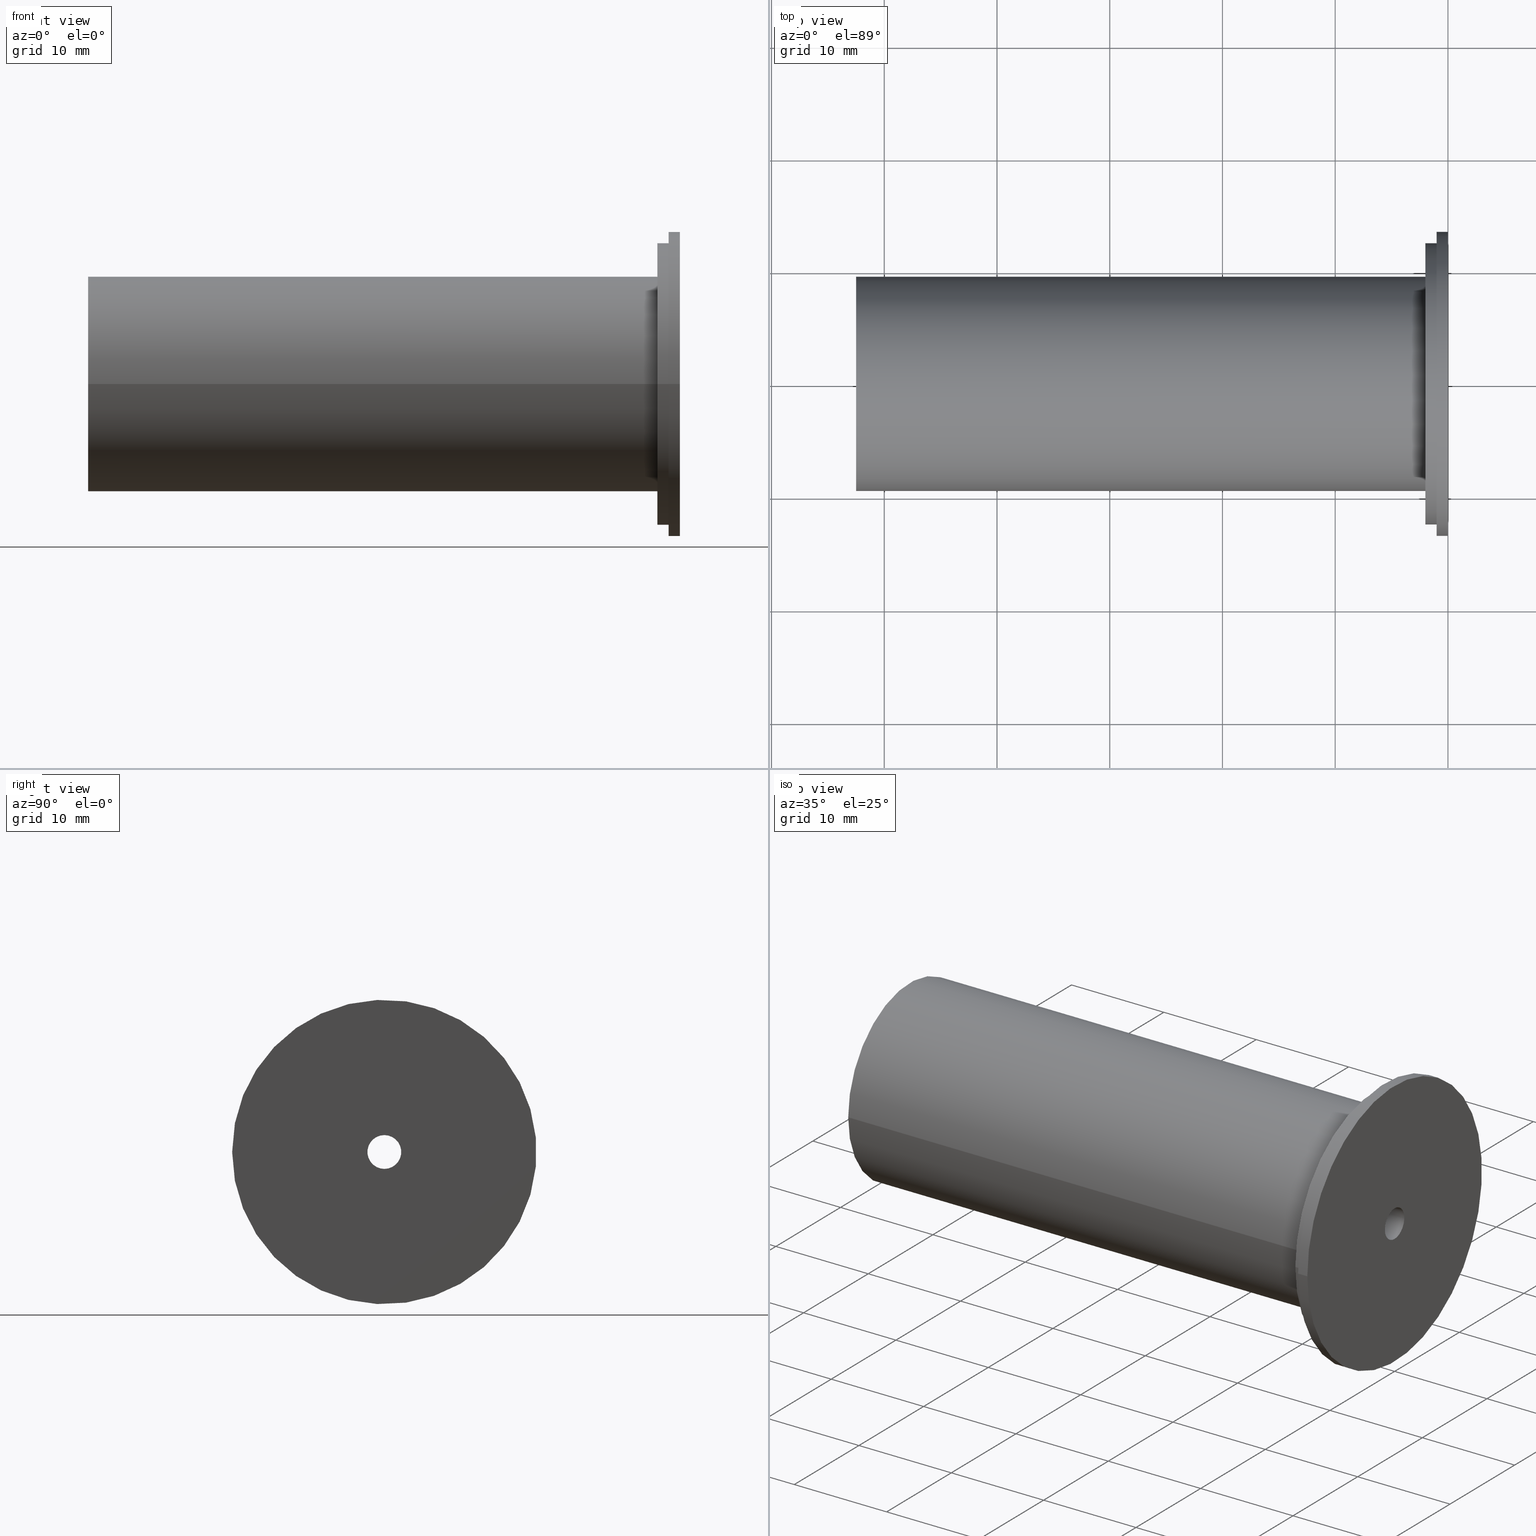
[diagram: canonical four-view strip — front | top / right | iso, engineering-drawing reading convention]
A machine part, canonical four-view strip (front | top / right | iso — engineering-drawing reading convention). The complete STEP part file that produces these views, byte-faithful:
ISO-10303-21;
HEADER;
/* Generated by software containing ST-Developer
 * from STEP Tools, Inc. (www.steptools.com) 
 */

FILE_DESCRIPTION(
/* description */ ('',
'CAx-IF Rec.Pracs.---Representation and Presentation of Product Manufa
cturing Information (PMI)---4.0---2014-10-13'),
/* implementation_level */ '2;1');

FILE_NAME(
/* name */ '102503.stp',
/* time_stamp */ '2025-05-12T15:12:07+09:00',
/* author */ ('eos'),
/* organization */ (''),
/* preprocessor_version */ 'ST-DEVELOPER v20',
/* originating_system */ 'Autodesk Inventor 2025',
/* authorisation */ '');

FILE_SCHEMA (('AP242_MANAGED_MODEL_BASED_3D_ENGINEERING_MIM_LF { 1 0 10303 442 1 1 4 }'));
ENDSEC;

DATA;
#10=CONSTRUCTIVE_GEOMETRY_REPRESENTATION_RELATIONSHIP('CGRR','None',#509,
#11);
#11=CONSTRUCTIVE_GEOMETRY_REPRESENTATION('Supplemental geometry',(#45,#46,
#47,#48),#501);
#12=MECHANICAL_DESIGN_AND_DRAUGHTING_RELATIONSHIP('\X2\B4F1AC01D22CC601\X0\',
'',#27,#28);
#13=MECHANICAL_DESIGN_AND_DRAUGHTING_RELATIONSHIP('\X2\C815BA74\X0\','',
#29,#28);
#14=MECHANICAL_DESIGN_AND_DRAUGHTING_RELATIONSHIP('\X2\D3C9BA74\X0\','',
#30,#28);
#15=MECHANICAL_DESIGN_AND_DRAUGHTING_RELATIONSHIP('\X2\C6B0CE21BA74\X0\',
'',#31,#28);
#16=MAPPED_ITEM('',#21,#309);
#17=MAPPED_ITEM('',#22,#310);
#18=MAPPED_ITEM('',#23,#311);
#19=MAPPED_ITEM('',#24,#312);
#20=MAPPED_ITEM('',#25,#313);
#21=REPRESENTATION_MAP(#309,#26);
#22=REPRESENTATION_MAP(#310,#509);
#23=REPRESENTATION_MAP(#311,#26);
#24=REPRESENTATION_MAP(#312,#26);
#25=REPRESENTATION_MAP(#313,#26);
#26=ADVANCED_BREP_SHAPE_REPRESENTATION('\X2\B4F1AC01D22CC601\X0\',(#85),
#501);
#27=DRAUGHTING_MODEL('\X2\B4F1AC01D22CC601\X0\',(#16,#33),#501);
#28=DRAUGHTING_MODEL('',(#17,#310),#501);
#29=DRAUGHTING_MODEL('\X2\C815BA74\X0\',(#18,#34),#501);
#30=DRAUGHTING_MODEL('\X2\D3C9BA74\X0\',(#19,#35),#501);
#31=DRAUGHTING_MODEL('\X2\C6B0CE21BA74\X0\',(#20,#36),#501);
#32=MECHANICAL_DESIGN_GEOMETRIC_PRESENTATION_REPRESENTATION('',(#59,#60,
#61,#62,#63,#64,#65,#66,#67,#68,#69,#70,#71,#72,#73,#74,#75,#76,#77,#78,
#79,#80,#81,#82,#83),#502);
#33=CAMERA_MODEL_D3('\X2\B4F1AC01D22CC601\X0\',#301,#37);
#34=CAMERA_MODEL_D3('\X2\C815BA74\X0\',#303,#38);
#35=CAMERA_MODEL_D3('\X2\D3C9BA74\X0\',#305,#39);
#36=CAMERA_MODEL_D3('\X2\C6B0CE21BA74\X0\',#307,#40);
#37=VIEW_VOLUME(.PARALLEL.,#484,16.9875424688562,0.,.F.,0.,.F.,.F.,#41);
#38=VIEW_VOLUME(.PARALLEL.,#487,117.693146607172,0.,.F.,0.,.F.,.F.,#42);
#39=VIEW_VOLUME(.PARALLEL.,#490,117.693146607172,0.,.F.,0.,.F.,.F.,#43);
#40=VIEW_VOLUME(.PARALLEL.,#493,117.693146607172,0.,.F.,0.,.F.,.F.,#44);
#41=PLANAR_BOX('view window',27.8110236220472,20.,#302);
#42=PLANAR_BOX('view window',27.8110236220472,20.,#304);
#43=PLANAR_BOX('view window',27.8110236220472,20.,#306);
#44=PLANAR_BOX('view window',27.8110236220472,20.,#308);
#45=GEOMETRIC_CURVE_SET('\X2\C2A4CF00CE58\X0\1',(#50,#51,#52,#53,#54,#55,
#56,#57,#58,#471,#472));
#46=GEOMETRIC_CURVE_SET('\X2\C2A4CF00CE58\X0\2',(#153,#474,#475));
#47=GEOMETRIC_CURVE_SET('\X2\C2A4CF00CE58\X0\3',(#154,#477,#478));
#48=GEOMETRIC_CURVE_SET('\X2\C2A4CF00CE58\X0\4',(#155,#480,#481));
#49=INVISIBILITY((#60,#61,#62,#63,#64,#65,#66,#67,#68,#69,#70,#71,#72,#73,
#74,#75,#76,#77,#78,#79,#80,#81,#82,#83));
#50=POLYLINE('',(#453,#454));
#51=POLYLINE('',(#455,#456));
#52=POLYLINE('',(#457,#458));
#53=POLYLINE('',(#459,#460));
#54=POLYLINE('',(#461,#462));
#55=POLYLINE('',(#463,#464));
#56=POLYLINE('',(#465,#466));
#57=POLYLINE('',(#467,#468));
#58=POLYLINE('',(#469,#470));
#59=STYLED_ITEM('',(#518),#85);
#60=STYLED_ITEM('',(#519),#50);
#61=STYLED_ITEM('',(#519),#51);
#62=STYLED_ITEM('',(#519),#52);
#63=STYLED_ITEM('',(#519),#53);
#64=STYLED_ITEM('',(#519),#54);
#65=STYLED_ITEM('',(#519),#55);
#66=STYLED_ITEM('',(#519),#56);
#67=STYLED_ITEM('',(#520),#57);
#68=STYLED_ITEM('',(#519),#58);
#69=STYLED_ITEM('',(#521),#471);
#70=STYLED_ITEM('',(#522),#472);
#71=STYLED_ITEM('',(#520),#153);
#72=STYLED_ITEM('',(#523),#474);
#73=STYLED_ITEM('',(#524),#475);
#74=STYLED_ITEM('',(#520),#154);
#75=STYLED_ITEM('',(#525),#477);
#76=STYLED_ITEM('',(#526),#478);
#77=STYLED_ITEM('',(#520),#155);
#78=STYLED_ITEM('',(#527),#480);
#79=STYLED_ITEM('',(#528),#481);
#80=STYLED_ITEM('',(#529),#45);
#81=STYLED_ITEM('',(#530),#46);
#82=STYLED_ITEM('',(#531),#47);
#83=STYLED_ITEM('',(#532),#48);
#84=STYLED_ITEM('',(#533),#17);
#85=MANIFOLD_SOLID_BREP('\X2\C194B9ACB4DC\X0\1',#250);
#86=FACE_BOUND('',#114,.T.);
#87=FACE_BOUND('',#117,.T.);
#88=FACE_BOUND('',#119,.T.);
#89=FACE_BOUND('',#122,.T.);
#90=PLANE('',#285);
#91=PLANE('',#290);
#92=PLANE('',#291);
#93=PLANE('',#295);
#94=CONICAL_SURFACE('',#277,3.75,0.785398163397448);
#95=CONICAL_SURFACE('',#281,4.125,0.785398163397448);
#96=FACE_OUTER_BOUND('',#108,.T.);
#97=FACE_OUTER_BOUND('',#109,.T.);
#98=FACE_OUTER_BOUND('',#110,.T.);
#99=FACE_OUTER_BOUND('',#111,.T.);
#100=FACE_OUTER_BOUND('',#112,.T.);
#101=FACE_OUTER_BOUND('',#113,.T.);
#102=FACE_OUTER_BOUND('',#115,.T.);
#103=FACE_OUTER_BOUND('',#116,.T.);
#104=FACE_OUTER_BOUND('',#118,.T.);
#105=FACE_OUTER_BOUND('',#120,.T.);
#106=FACE_OUTER_BOUND('',#121,.T.);
#107=FACE_OUTER_BOUND('',#123,.T.);
#108=EDGE_LOOP('',(#190,#191,#192,#193,#194));
#109=EDGE_LOOP('',(#195,#196,#197,#198,#199));
#110=EDGE_LOOP('',(#200,#201,#202,#203));
#111=EDGE_LOOP('',(#204,#205,#206,#207));
#112=EDGE_LOOP('',(#208,#209,#210,#211));
#113=EDGE_LOOP('',(#212));
#114=EDGE_LOOP('',(#213));
#115=EDGE_LOOP('',(#214,#215,#216,#217));
#116=EDGE_LOOP('',(#218));
#117=EDGE_LOOP('',(#219));
#118=EDGE_LOOP('',(#220));
#119=EDGE_LOOP('',(#221));
#120=EDGE_LOOP('',(#222,#223,#224,#225));
#121=EDGE_LOOP('',(#226));
#122=EDGE_LOOP('',(#227));
#123=EDGE_LOOP('',(#228,#229,#230,#231));
#124=LINE('',#411,#132);
#125=LINE('',#418,#133);
#126=LINE('',#422,#134);
#127=LINE('',#426,#135);
#128=LINE('',#430,#136);
#129=LINE('',#439,#137);
#130=LINE('',#447,#138);
#131=LINE('',#452,#139);
#132=VECTOR('',#320,1.5);
#133=VECTOR('',#329,3.75);
#134=VECTOR('',#334,7.5);
#135=VECTOR('',#339,4.125);
#136=VECTOR('',#344,8.25);
#137=VECTOR('',#355,13.5);
#138=VECTOR('',#366,9.525);
#139=VECTOR('',#373,12.5);
#140=CIRCLE('',#274,1.5);
#141=CIRCLE('',#275,1.5);
#142=CIRCLE('',#276,1.5);
#143=CIRCLE('',#278,7.5);
#144=CIRCLE('',#280,7.5);
#145=CIRCLE('',#282,8.25);
#146=CIRCLE('',#284,8.25);
#147=CIRCLE('',#286,13.5);
#148=CIRCLE('',#287,12.5);
#149=CIRCLE('',#289,13.5);
#150=CIRCLE('',#292,9.525);
#151=CIRCLE('',#294,9.525);
#152=CIRCLE('',#296,12.5);
#153=CIRCLE('',#298,9.525);
#154=CIRCLE('',#299,8.25);
#155=CIRCLE('',#300,9.525);
#156=VERTEX_POINT('',#408);
#157=VERTEX_POINT('',#410);
#158=VERTEX_POINT('',#412);
#159=VERTEX_POINT('',#416);
#160=VERTEX_POINT('',#420);
#161=VERTEX_POINT('',#424);
#162=VERTEX_POINT('',#428);
#163=VERTEX_POINT('',#432);
#164=VERTEX_POINT('',#434);
#165=VERTEX_POINT('',#437);
#166=VERTEX_POINT('',#442);
#167=VERTEX_POINT('',#445);
#168=VERTEX_POINT('',#449);
#169=EDGE_CURVE('',#156,#156,#140,.T.);
#170=EDGE_CURVE('',#156,#157,#124,.T.);
#171=EDGE_CURVE('',#158,#157,#141,.T.);
#172=EDGE_CURVE('',#157,#158,#142,.T.);
#173=EDGE_CURVE('',#159,#159,#143,.T.);
#174=EDGE_CURVE('',#159,#158,#125,.T.);
#175=EDGE_CURVE('',#160,#160,#144,.T.);
#176=EDGE_CURVE('',#160,#159,#126,.T.);
#177=EDGE_CURVE('',#161,#161,#145,.T.);
#178=EDGE_CURVE('',#161,#160,#127,.T.);
#179=EDGE_CURVE('',#162,#162,#146,.T.);
#180=EDGE_CURVE('',#162,#161,#128,.T.);
#181=EDGE_CURVE('',#163,#163,#147,.T.);
#182=EDGE_CURVE('',#164,#164,#148,.T.);
#183=EDGE_CURVE('',#165,#165,#149,.T.);
#184=EDGE_CURVE('',#165,#163,#129,.T.);
#185=EDGE_CURVE('',#166,#166,#150,.T.);
#186=EDGE_CURVE('',#167,#167,#151,.T.);
#187=EDGE_CURVE('',#167,#166,#130,.T.);
#188=EDGE_CURVE('',#168,#168,#152,.T.);
#189=EDGE_CURVE('',#164,#168,#131,.T.);
#190=ORIENTED_EDGE('',*,*,#169,.F.);
#191=ORIENTED_EDGE('',*,*,#170,.T.);
#192=ORIENTED_EDGE('',*,*,#171,.F.);
#193=ORIENTED_EDGE('',*,*,#172,.F.);
#194=ORIENTED_EDGE('',*,*,#170,.F.);
#195=ORIENTED_EDGE('',*,*,#173,.T.);
#196=ORIENTED_EDGE('',*,*,#174,.T.);
#197=ORIENTED_EDGE('',*,*,#171,.T.);
#198=ORIENTED_EDGE('',*,*,#172,.T.);
#199=ORIENTED_EDGE('',*,*,#174,.F.);
#200=ORIENTED_EDGE('',*,*,#175,.F.);
#201=ORIENTED_EDGE('',*,*,#176,.T.);
#202=ORIENTED_EDGE('',*,*,#173,.F.);
#203=ORIENTED_EDGE('',*,*,#176,.F.);
#204=ORIENTED_EDGE('',*,*,#177,.T.);
#205=ORIENTED_EDGE('',*,*,#178,.T.);
#206=ORIENTED_EDGE('',*,*,#175,.T.);
#207=ORIENTED_EDGE('',*,*,#178,.F.);
#208=ORIENTED_EDGE('',*,*,#179,.F.);
#209=ORIENTED_EDGE('',*,*,#180,.T.);
#210=ORIENTED_EDGE('',*,*,#177,.F.);
#211=ORIENTED_EDGE('',*,*,#180,.F.);
#212=ORIENTED_EDGE('',*,*,#181,.F.);
#213=ORIENTED_EDGE('',*,*,#182,.T.);
#214=ORIENTED_EDGE('',*,*,#183,.F.);
#215=ORIENTED_EDGE('',*,*,#184,.T.);
#216=ORIENTED_EDGE('',*,*,#181,.T.);
#217=ORIENTED_EDGE('',*,*,#184,.F.);
#218=ORIENTED_EDGE('',*,*,#183,.T.);
#219=ORIENTED_EDGE('',*,*,#169,.T.);
#220=ORIENTED_EDGE('',*,*,#185,.F.);
#221=ORIENTED_EDGE('',*,*,#179,.T.);
#222=ORIENTED_EDGE('',*,*,#186,.F.);
#223=ORIENTED_EDGE('',*,*,#187,.T.);
#224=ORIENTED_EDGE('',*,*,#185,.T.);
#225=ORIENTED_EDGE('',*,*,#187,.F.);
#226=ORIENTED_EDGE('',*,*,#188,.F.);
#227=ORIENTED_EDGE('',*,*,#186,.T.);
#228=ORIENTED_EDGE('',*,*,#182,.F.);
#229=ORIENTED_EDGE('',*,*,#189,.T.);
#230=ORIENTED_EDGE('',*,*,#188,.T.);
#231=ORIENTED_EDGE('',*,*,#189,.F.);
#232=CYLINDRICAL_SURFACE('',#273,1.5);
#233=CYLINDRICAL_SURFACE('',#279,7.5);
#234=CYLINDRICAL_SURFACE('',#283,8.25);
#235=CYLINDRICAL_SURFACE('',#288,13.5);
#236=CYLINDRICAL_SURFACE('',#293,9.525);
#237=CYLINDRICAL_SURFACE('',#297,12.5);
#238=ADVANCED_FACE('',(#96),#232,.F.);
#239=ADVANCED_FACE('',(#97),#94,.F.);
#240=ADVANCED_FACE('',(#98),#233,.F.);
#241=ADVANCED_FACE('',(#99),#95,.F.);
#242=ADVANCED_FACE('',(#100),#234,.F.);
#243=ADVANCED_FACE('',(#101,#86),#90,.T.);
#244=ADVANCED_FACE('',(#102),#235,.T.);
#245=ADVANCED_FACE('',(#103,#87),#91,.T.);
#246=ADVANCED_FACE('',(#104,#88),#92,.T.);
#247=ADVANCED_FACE('',(#105),#236,.T.);
#248=ADVANCED_FACE('',(#106,#89),#93,.T.);
#249=ADVANCED_FACE('',(#107),#237,.T.);
#250=CLOSED_SHELL('',(#238,#239,#240,#241,#242,#243,#244,#245,#246,#247,
#248,#249));
#251=DERIVED_UNIT_ELEMENT(#254,1.);
#252=DERIVED_UNIT_ELEMENT(#504,-3.);
#253=DIMENSIONAL_EXPONENTS(0.,1.,0.,0.,0.,0.,0.);
#254=(
CONVERSION_BASED_UNIT('gram',#256)
MASS_UNIT()
NAMED_UNIT(#253)
);
#255=(
MASS_UNIT()
NAMED_UNIT(*)
SI_UNIT(.KILO.,.GRAM.)
);
#256=MASS_MEASURE_WITH_UNIT(MASS_MEASURE(0.001),#255);
#257=DERIVED_UNIT((#251,#252));
#258=MEASURE_REPRESENTATION_ITEM('density measure',
POSITIVE_RATIO_MEASURE(1.),#257);
#259=PROPERTY_DEFINITION_REPRESENTATION(#264,#261);
#260=PROPERTY_DEFINITION_REPRESENTATION(#265,#262);
#261=REPRESENTATION('material name',(#263),#501);
#262=REPRESENTATION('density',(#258),#501);
#263=DESCRIPTIVE_REPRESENTATION_ITEM('\X2\C77CBC18\X0\','\X2\C77CBC18\X0\');
#264=PROPERTY_DEFINITION('material property','material name',#511);
#265=PROPERTY_DEFINITION('material property','density of part',#511);
#266=DATE_TIME_ROLE('creation_date');
#267=APPLIED_DATE_AND_TIME_ASSIGNMENT(#268,#266,(#511));
#268=DATE_AND_TIME(#269,#270);
#269=CALENDAR_DATE(2023,2,2);
#270=LOCAL_TIME(0,0,0.,#271);
#271=COORDINATED_UNIVERSAL_TIME_OFFSET(0,0,.BEHIND.);
#272=AXIS2_PLACEMENT_3D('',#406,#314,#315);
#273=AXIS2_PLACEMENT_3D('',#407,#316,#317);
#274=AXIS2_PLACEMENT_3D('',#409,#318,#319);
#275=AXIS2_PLACEMENT_3D('',#413,#321,#322);
#276=AXIS2_PLACEMENT_3D('',#414,#323,#324);
#277=AXIS2_PLACEMENT_3D('',#415,#325,#326);
#278=AXIS2_PLACEMENT_3D('',#417,#327,#328);
#279=AXIS2_PLACEMENT_3D('',#419,#330,#331);
#280=AXIS2_PLACEMENT_3D('',#421,#332,#333);
#281=AXIS2_PLACEMENT_3D('',#423,#335,#336);
#282=AXIS2_PLACEMENT_3D('',#425,#337,#338);
#283=AXIS2_PLACEMENT_3D('',#427,#340,#341);
#284=AXIS2_PLACEMENT_3D('',#429,#342,#343);
#285=AXIS2_PLACEMENT_3D('',#431,#345,#346);
#286=AXIS2_PLACEMENT_3D('',#433,#347,#348);
#287=AXIS2_PLACEMENT_3D('',#435,#349,#350);
#288=AXIS2_PLACEMENT_3D('',#436,#351,#352);
#289=AXIS2_PLACEMENT_3D('',#438,#353,#354);
#290=AXIS2_PLACEMENT_3D('',#440,#356,#357);
#291=AXIS2_PLACEMENT_3D('',#441,#358,#359);
#292=AXIS2_PLACEMENT_3D('',#443,#360,#361);
#293=AXIS2_PLACEMENT_3D('',#444,#362,#363);
#294=AXIS2_PLACEMENT_3D('',#446,#364,#365);
#295=AXIS2_PLACEMENT_3D('',#448,#367,#368);
#296=AXIS2_PLACEMENT_3D('',#450,#369,#370);
#297=AXIS2_PLACEMENT_3D('',#451,#371,#372);
#298=AXIS2_PLACEMENT_3D('',#473,#374,#375);
#299=AXIS2_PLACEMENT_3D('',#476,#376,#377);
#300=AXIS2_PLACEMENT_3D('',#479,#378,#379);
#301=AXIS2_PLACEMENT_3D('view reference',#482,#380,#381);
#302=AXIS2_PLACEMENT_3D('view window',#483,#382,#383);
#303=AXIS2_PLACEMENT_3D('view reference',#485,#384,#385);
#304=AXIS2_PLACEMENT_3D('view window',#486,#386,#387);
#305=AXIS2_PLACEMENT_3D('view reference',#488,#388,#389);
#306=AXIS2_PLACEMENT_3D('view window',#489,#390,#391);
#307=AXIS2_PLACEMENT_3D('view reference',#491,#392,#393);
#308=AXIS2_PLACEMENT_3D('view window',#492,#394,#395);
#309=AXIS2_PLACEMENT_3D('',#494,#396,#397);
#310=AXIS2_PLACEMENT_3D('',#495,#398,#399);
#311=AXIS2_PLACEMENT_3D('',#496,#400,#401);
#312=AXIS2_PLACEMENT_3D('',#497,#402,#403);
#313=AXIS2_PLACEMENT_3D('',#498,#404,#405);
#314=DIRECTION('axis',(0.,0.,1.));
#315=DIRECTION('refdir',(1.,0.,0.));
#316=DIRECTION('center_axis',(1.,0.,0.));
#317=DIRECTION('ref_axis',(0.,0.,-1.));
#318=DIRECTION('center_axis',(-1.,0.,0.));
#319=DIRECTION('ref_axis',(0.,0.,-1.));
#320=DIRECTION('',(-1.,0.,0.));
#321=DIRECTION('center_axis',(1.,0.,0.));
#322=DIRECTION('ref_axis',(0.,0.,-1.));
#323=DIRECTION('center_axis',(1.,0.,0.));
#324=DIRECTION('ref_axis',(0.,0.,-1.));
#325=DIRECTION('center_axis',(-1.,0.,0.));
#326=DIRECTION('ref_axis',(0.,0.,1.));
#327=DIRECTION('center_axis',(-1.,0.,0.));
#328=DIRECTION('ref_axis',(0.,0.,1.));
#329=DIRECTION('',(0.707106781186547,8.65956056235493E-17,0.707106781186547));
#330=DIRECTION('center_axis',(-1.,0.,0.));
#331=DIRECTION('ref_axis',(0.,0.,1.));
#332=DIRECTION('center_axis',(1.,0.,0.));
#333=DIRECTION('ref_axis',(0.,0.,1.));
#334=DIRECTION('',(1.,0.,0.));
#335=DIRECTION('center_axis',(-1.,0.,0.));
#336=DIRECTION('ref_axis',(0.,0.,1.));
#337=DIRECTION('center_axis',(-1.,0.,0.));
#338=DIRECTION('ref_axis',(0.,0.,1.));
#339=DIRECTION('',(0.707106781186548,8.65956056235493E-17,0.707106781186547));
#340=DIRECTION('center_axis',(-1.,0.,0.));
#341=DIRECTION('ref_axis',(0.,0.,1.));
#342=DIRECTION('center_axis',(1.,0.,0.));
#343=DIRECTION('ref_axis',(0.,0.,1.));
#344=DIRECTION('',(1.,0.,0.));
#345=DIRECTION('center_axis',(-1.,0.,0.));
#346=DIRECTION('ref_axis',(0.,0.,1.));
#347=DIRECTION('center_axis',(1.,0.,0.));
#348=DIRECTION('ref_axis',(0.,0.,-1.));
#349=DIRECTION('center_axis',(1.,0.,0.));
#350=DIRECTION('ref_axis',(0.,0.,-1.));
#351=DIRECTION('center_axis',(1.,0.,0.));
#352=DIRECTION('ref_axis',(0.,1.,0.));
#353=DIRECTION('center_axis',(1.,0.,0.));
#354=DIRECTION('ref_axis',(0.,0.,-1.));
#355=DIRECTION('',(-1.,0.,0.));
#356=DIRECTION('center_axis',(1.,0.,0.));
#357=DIRECTION('ref_axis',(0.,0.,-1.));
#358=DIRECTION('center_axis',(-1.,0.,0.));
#359=DIRECTION('ref_axis',(0.,0.,1.));
#360=DIRECTION('center_axis',(1.,0.,0.));
#361=DIRECTION('ref_axis',(0.,0.,-1.));
#362=DIRECTION('center_axis',(1.,0.,0.));
#363=DIRECTION('ref_axis',(0.,1.,0.));
#364=DIRECTION('center_axis',(1.,0.,0.));
#365=DIRECTION('ref_axis',(0.,0.,-1.));
#366=DIRECTION('',(-1.,0.,0.));
#367=DIRECTION('center_axis',(-1.,0.,0.));
#368=DIRECTION('ref_axis',(0.,0.,1.));
#369=DIRECTION('center_axis',(1.,0.,0.));
#370=DIRECTION('ref_axis',(0.,0.,-1.));
#371=DIRECTION('center_axis',(1.,0.,0.));
#372=DIRECTION('ref_axis',(0.,1.,0.));
#373=DIRECTION('',(-1.,0.,0.));
#374=DIRECTION('center_axis',(-1.,0.,0.));
#375=DIRECTION('ref_axis',(0.,0.,1.));
#376=DIRECTION('center_axis',(-1.,0.,0.));
#377=DIRECTION('ref_axis',(0.,0.,1.));
#378=DIRECTION('center_axis',(1.,0.,0.));
#379=DIRECTION('ref_axis',(0.,0.,-1.));
#380=DIRECTION('center_axis',(-0.577350269189626,0.577350269189626,-0.577350269189626));
#381=DIRECTION('ref_axis',(-0.707106781186548,-0.707106781186548,0.));
#382=DIRECTION('center_axis',(0.,0.,1.));
#383=DIRECTION('ref_axis',(1.,0.,0.));
#384=DIRECTION('center_axis',(-2.22044604925031E-16,0.,-1.));
#385=DIRECTION('ref_axis',(-1.,0.,2.22044604925031E-16));
#386=DIRECTION('center_axis',(0.,0.,1.));
#387=DIRECTION('ref_axis',(1.,0.,0.));
#388=DIRECTION('center_axis',(0.,-1.,0.));
#389=DIRECTION('ref_axis',(-1.,0.,0.));
#390=DIRECTION('center_axis',(0.,0.,1.));
#391=DIRECTION('ref_axis',(1.,0.,0.));
#392=DIRECTION('center_axis',(-1.,0.,0.));
#393=DIRECTION('ref_axis',(0.,0.,1.));
#394=DIRECTION('center_axis',(0.,0.,1.));
#395=DIRECTION('ref_axis',(1.,0.,0.));
#396=DIRECTION('center_axis',(0.,0.,1.));
#397=DIRECTION('ref_axis',(1.,0.,0.));
#398=DIRECTION('center_axis',(0.,0.,1.));
#399=DIRECTION('ref_axis',(1.,0.,0.));
#400=DIRECTION('center_axis',(0.,0.,1.));
#401=DIRECTION('ref_axis',(1.,0.,0.));
#402=DIRECTION('center_axis',(0.,0.,1.));
#403=DIRECTION('ref_axis',(1.,0.,0.));
#404=DIRECTION('center_axis',(0.,0.,1.));
#405=DIRECTION('ref_axis',(1.,0.,0.));
#406=CARTESIAN_POINT('',(0.,0.,0.));
#407=CARTESIAN_POINT('Origin',(-64.9172550251472,0.,0.));
#408=CARTESIAN_POINT('',(8.88178419700125E-15,-1.83697019872103E-16,1.5));
#409=CARTESIAN_POINT('Origin',(1.77635683940025E-14,0.,0.));
#410=CARTESIAN_POINT('',(-16.,-1.83697019872103E-16,1.5));
#411=CARTESIAN_POINT('',(-64.9172550251472,-1.83697019872103E-16,1.5));
#412=CARTESIAN_POINT('',(-16.,-1.83697019872103E-16,-1.5));
#413=CARTESIAN_POINT('Origin',(-16.,0.,0.));
#414=CARTESIAN_POINT('Origin',(-16.,0.,0.));
#415=CARTESIAN_POINT('Origin',(-18.25,0.,0.));
#416=CARTESIAN_POINT('',(-22.,-9.18485099360515E-16,-7.5));
#417=CARTESIAN_POINT('Origin',(-22.,0.,0.));
#418=CARTESIAN_POINT('',(-18.25,-4.59242549680257E-16,-3.75));
#419=CARTESIAN_POINT('Origin',(-37.25,0.,0.));
#420=CARTESIAN_POINT('',(-37.25,9.18485099360515E-16,-7.5));
#421=CARTESIAN_POINT('Origin',(-37.25,0.,0.));
#422=CARTESIAN_POINT('',(-37.25,-9.18485099360515E-16,-7.5));
#423=CARTESIAN_POINT('Origin',(-33.875,0.,0.));
#424=CARTESIAN_POINT('',(-38.,-1.01033360929657E-15,-8.25));
#425=CARTESIAN_POINT('Origin',(-38.,0.,0.));
#426=CARTESIAN_POINT('',(-33.875,-5.05166804648283E-16,-4.125));
#427=CARTESIAN_POINT('Origin',(-45.25,0.,0.));
#428=CARTESIAN_POINT('',(-52.5,-1.01033360929657E-15,-8.25));
#429=CARTESIAN_POINT('Origin',(-52.5,0.,0.));
#430=CARTESIAN_POINT('',(-45.25,-1.01033360929657E-15,-8.25));
#431=CARTESIAN_POINT('Origin',(-0.999999999999996,13.5,0.));
#432=CARTESIAN_POINT('',(-0.999999999999996,-13.5,-1.65327317884893E-15));
#433=CARTESIAN_POINT('Origin',(-0.999999999999996,0.,0.));
#434=CARTESIAN_POINT('',(-0.999999999999996,-12.5,-1.53080849893419E-15));
#435=CARTESIAN_POINT('Origin',(-0.999999999999996,0.,0.));
#436=CARTESIAN_POINT('Origin',(-0.499999999999995,0.,0.));
#437=CARTESIAN_POINT('',(4.9960036108132E-15,-13.5,-1.65327317884893E-15));
#438=CARTESIAN_POINT('Origin',(4.9960036108132E-15,0.,0.));
#439=CARTESIAN_POINT('',(-0.499999999999995,-13.5,-1.65327317884893E-15));
#440=CARTESIAN_POINT('Origin',(1.33226762955019E-14,0.,0.));
#441=CARTESIAN_POINT('Origin',(-52.5,9.525,0.));
#442=CARTESIAN_POINT('',(-52.5,-9.525,-1.16647607618785E-15));
#443=CARTESIAN_POINT('Origin',(-52.5,0.,0.));
#444=CARTESIAN_POINT('Origin',(-27.25,0.,0.));
#445=CARTESIAN_POINT('',(-2.,-9.525,-1.16647607618785E-15));
#446=CARTESIAN_POINT('Origin',(-2.,0.,0.));
#447=CARTESIAN_POINT('',(-27.25,-9.525,-1.16647607618785E-15));
#448=CARTESIAN_POINT('Origin',(-2.,12.5,0.));
#449=CARTESIAN_POINT('',(-2.,-12.5,-1.53080849893419E-15));
#450=CARTESIAN_POINT('Origin',(-2.,0.,0.));
#451=CARTESIAN_POINT('Origin',(-1.5,0.,0.));
#452=CARTESIAN_POINT('',(-1.5,-12.5,-1.53080849893419E-15));
#453=CARTESIAN_POINT('polyline point',(-52.5,0.,0.));
#454=CARTESIAN_POINT('polyline point',(-52.5,9.525,0.));
#455=CARTESIAN_POINT('polyline point',(-52.5,9.525,0.));
#456=CARTESIAN_POINT('polyline point',(-2.,9.525,0.));
#457=CARTESIAN_POINT('polyline point',(-2.,9.525,0.));
#458=CARTESIAN_POINT('polyline point',(-2.,12.5,0.));
#459=CARTESIAN_POINT('polyline point',(-2.,12.5,0.));
#460=CARTESIAN_POINT('polyline point',(-0.999999999999996,12.5,0.));
#461=CARTESIAN_POINT('polyline point',(-0.999999999999996,12.5,0.));
#462=CARTESIAN_POINT('polyline point',(-0.999999999999996,13.5,0.));
#463=CARTESIAN_POINT('polyline point',(-0.999999999999996,13.5,0.));
#464=CARTESIAN_POINT('polyline point',(5.07832291369258E-15,13.5,0.));
#465=CARTESIAN_POINT('polyline point',(5.07832291369258E-15,13.5,0.));
#466=CARTESIAN_POINT('polyline point',(1.33226762955019E-14,0.,0.));
#467=CARTESIAN_POINT('polyline point',(0.,-2.7,0.));
#468=CARTESIAN_POINT('polyline point',(0.,16.2,0.));
#469=CARTESIAN_POINT('polyline point',(-52.5,0.,0.));
#470=CARTESIAN_POINT('polyline point',(1.33226762955019E-14,0.,0.));
#471=CARTESIAN_POINT('',(-52.5,0.,0.));
#472=CARTESIAN_POINT('',(1.33226762955019E-14,0.,0.));
#473=CARTESIAN_POINT('Origin',(-52.5,0.,0.));
#474=CARTESIAN_POINT('',(-52.5,0.,0.));
#475=CARTESIAN_POINT('',(-52.5,0.,0.));
#476=CARTESIAN_POINT('Origin',(-52.5,0.,0.));
#477=CARTESIAN_POINT('',(-52.5,0.,0.));
#478=CARTESIAN_POINT('',(-52.5,0.,0.));
#479=CARTESIAN_POINT('Origin',(1.33226762955019E-14,0.,0.));
#480=CARTESIAN_POINT('',(1.33226762955019E-14,0.,0.));
#481=CARTESIAN_POINT('',(1.33226762955019E-14,0.,0.));
#482=CARTESIAN_POINT('Origin',(9.80776221726431,-9.80776221726431,9.80776221726431));
#483=CARTESIAN_POINT('Origin',(-13.9055118110236,-10.,16.9875424688562));
#484=CARTESIAN_POINT('',(0.,0.,0.));
#485=CARTESIAN_POINT('Origin',(2.61331282407732E-14,0.,117.693146607172));
#486=CARTESIAN_POINT('Origin',(-13.9055118110236,-10.,117.693146607172));
#487=CARTESIAN_POINT('',(0.,0.,0.));
#488=CARTESIAN_POINT('Origin',(0.,117.693146607172,0.));
#489=CARTESIAN_POINT('Origin',(-13.9055118110236,-10.,117.693146607172));
#490=CARTESIAN_POINT('',(0.,0.,0.));
#491=CARTESIAN_POINT('Origin',(117.693146607172,0.,0.));
#492=CARTESIAN_POINT('Origin',(-13.9055118110236,-10.,117.693146607172));
#493=CARTESIAN_POINT('',(0.,0.,0.));
#494=CARTESIAN_POINT('Origin',(0.,0.,0.));
#495=CARTESIAN_POINT('Origin',(0.,0.,0.));
#496=CARTESIAN_POINT('Origin',(0.,0.,0.));
#497=CARTESIAN_POINT('Origin',(0.,0.,0.));
#498=CARTESIAN_POINT('Origin',(0.,0.,0.));
#499=UNCERTAINTY_MEASURE_WITH_UNIT(LENGTH_MEASURE(0.01),#503,
'DISTANCE_ACCURACY_VALUE',
'Maximum model space distance between geometric entities at asserted c
onnectivities');
#500=UNCERTAINTY_MEASURE_WITH_UNIT(LENGTH_MEASURE(0.01),#503,
'DISTANCE_ACCURACY_VALUE',
'Maximum model space distance between geometric entities at asserted c
onnectivities');
#501=(
GEOMETRIC_REPRESENTATION_CONTEXT(3)
GLOBAL_UNCERTAINTY_ASSIGNED_CONTEXT((#499))
GLOBAL_UNIT_ASSIGNED_CONTEXT((#503,#505,#506))
REPRESENTATION_CONTEXT('','3D')
);
#502=(
GEOMETRIC_REPRESENTATION_CONTEXT(3)
GLOBAL_UNCERTAINTY_ASSIGNED_CONTEXT((#500))
GLOBAL_UNIT_ASSIGNED_CONTEXT((#503,#505,#506))
REPRESENTATION_CONTEXT('','3D')
);
#503=(
LENGTH_UNIT()
NAMED_UNIT(*)
SI_UNIT(.MILLI.,.METRE.)
);
#504=(
LENGTH_UNIT()
NAMED_UNIT(*)
SI_UNIT(.CENTI.,.METRE.)
);
#505=(
NAMED_UNIT(*)
PLANE_ANGLE_UNIT()
SI_UNIT($,.RADIAN.)
);
#506=(
NAMED_UNIT(*)
SI_UNIT($,.STERADIAN.)
SOLID_ANGLE_UNIT()
);
#507=SHAPE_DEFINITION_REPRESENTATION(#508,#509);
#508=PRODUCT_DEFINITION_SHAPE('',$,#511);
#509=SHAPE_REPRESENTATION('',(#272,#85),#501);
#510=PRODUCT_DEFINITION_CONTEXT('part definition',#515,'design');
#511=PRODUCT_DEFINITION('LO-HK19.05-3.175','LO-HK19.05-3',#512,#510);
#512=PRODUCT_DEFINITION_FORMATION('',$,#517);
#513=PRODUCT_RELATED_PRODUCT_CATEGORY('LO-HK19.05-3','LO-HK19.05-3',(#517));
#514=APPLICATION_PROTOCOL_DEFINITION('international standard',
'ap242_managed_model_based_3d_engineering',2011,#515);
#515=APPLICATION_CONTEXT('Managed model based 3d engineering');
#516=PRODUCT_CONTEXT('part definition',#515,'mechanical');
#517=PRODUCT('LO-HK19.05-3.175','LO-HK19.05-3',$,(#516));
#518=PRESENTATION_STYLE_ASSIGNMENT((#534));
#519=PRESENTATION_STYLE_ASSIGNMENT((#535));
#520=PRESENTATION_STYLE_ASSIGNMENT((#536));
#521=PRESENTATION_STYLE_ASSIGNMENT((NULL_STYLE(.NULL.)));
#522=PRESENTATION_STYLE_ASSIGNMENT((NULL_STYLE(.NULL.)));
#523=PRESENTATION_STYLE_ASSIGNMENT((NULL_STYLE(.NULL.)));
#524=PRESENTATION_STYLE_ASSIGNMENT((NULL_STYLE(.NULL.)));
#525=PRESENTATION_STYLE_ASSIGNMENT((NULL_STYLE(.NULL.)));
#526=PRESENTATION_STYLE_ASSIGNMENT((NULL_STYLE(.NULL.)));
#527=PRESENTATION_STYLE_ASSIGNMENT((NULL_STYLE(.NULL.)));
#528=PRESENTATION_STYLE_ASSIGNMENT((NULL_STYLE(.NULL.)));
#529=PRESENTATION_STYLE_ASSIGNMENT((NULL_STYLE(.NULL.)));
#530=PRESENTATION_STYLE_ASSIGNMENT((NULL_STYLE(.NULL.)));
#531=PRESENTATION_STYLE_ASSIGNMENT((NULL_STYLE(.NULL.)));
#532=PRESENTATION_STYLE_ASSIGNMENT((NULL_STYLE(.NULL.)));
#533=PRESENTATION_STYLE_ASSIGNMENT((NULL_STYLE(.NULL.)));
#534=SURFACE_STYLE_USAGE(.BOTH.,#539);
#535=SURFACE_STYLE_USAGE(.BOTH.,#540);
#536=SURFACE_STYLE_USAGE(.BOTH.,#541);
#537=SURFACE_STYLE_RENDERING_WITH_PROPERTIES($,#551,(#538));
#538=SURFACE_STYLE_TRANSPARENT(0.339999973773956);
#539=SURFACE_SIDE_STYLE('',(#542,#537));
#540=SURFACE_SIDE_STYLE('',(#543));
#541=SURFACE_SIDE_STYLE('',(#544));
#542=SURFACE_STYLE_FILL_AREA(#545);
#543=SURFACE_STYLE_FILL_AREA(#546);
#544=SURFACE_STYLE_FILL_AREA(#547);
#545=FILL_AREA_STYLE('',(#548));
#546=FILL_AREA_STYLE('',(#549));
#547=FILL_AREA_STYLE('',(#550));
#548=FILL_AREA_STYLE_COLOUR('',#551);
#549=FILL_AREA_STYLE_COLOUR('',#552);
#550=FILL_AREA_STYLE_COLOUR('',#553);
#551=COLOUR_RGB('',0.925490196078431,0.945098039215686,0.937254901960784);
#552=COLOUR_RGB('',1.,1.,1.);
#553=COLOUR_RGB('',0.913725490196078,0.913725490196078,0.);
ENDSEC;
END-ISO-10303-21;
